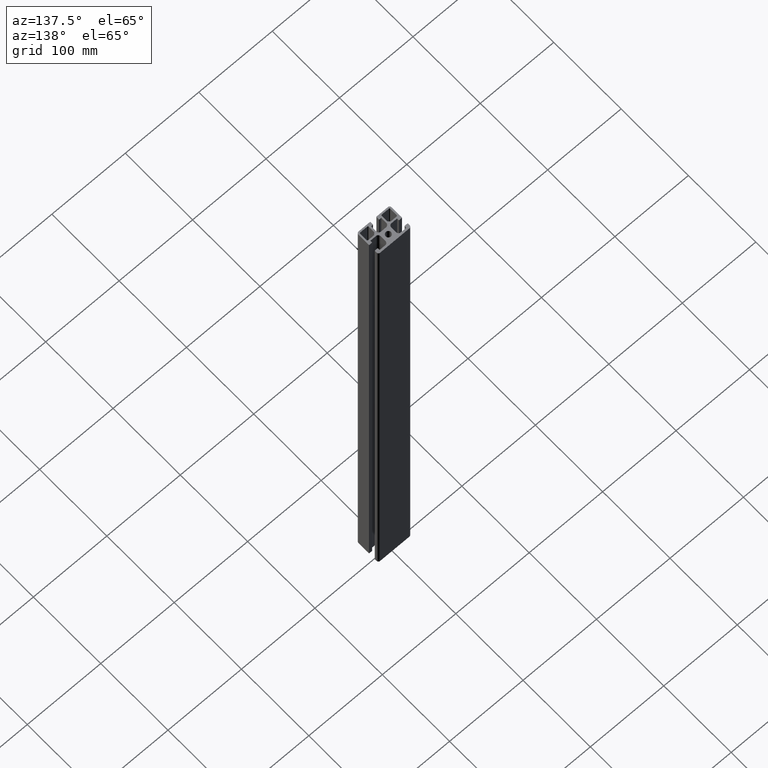
[diagram: clean part render]
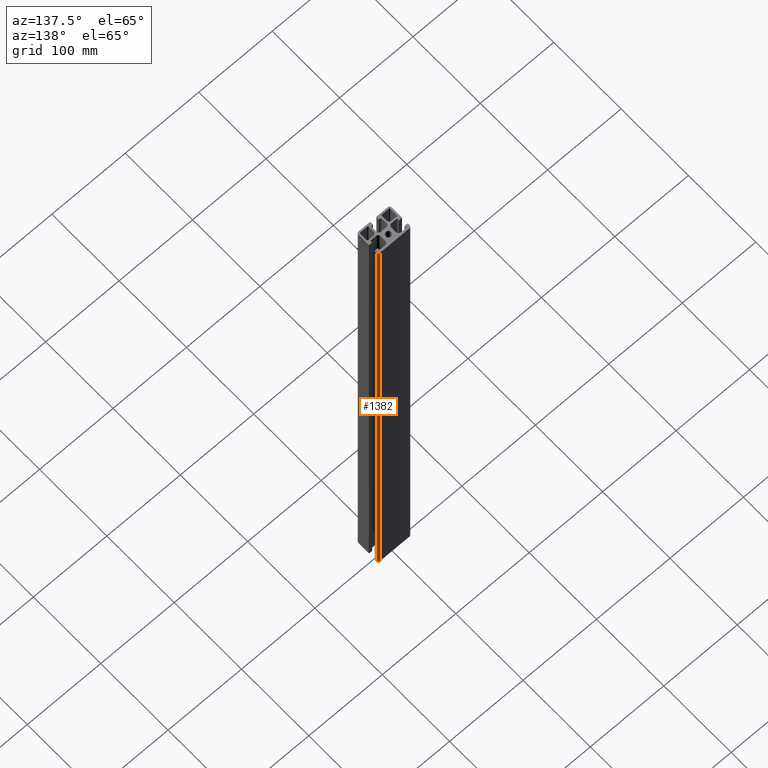
[diagram: same view with one face highlighted and labeled with its STEP entity id]
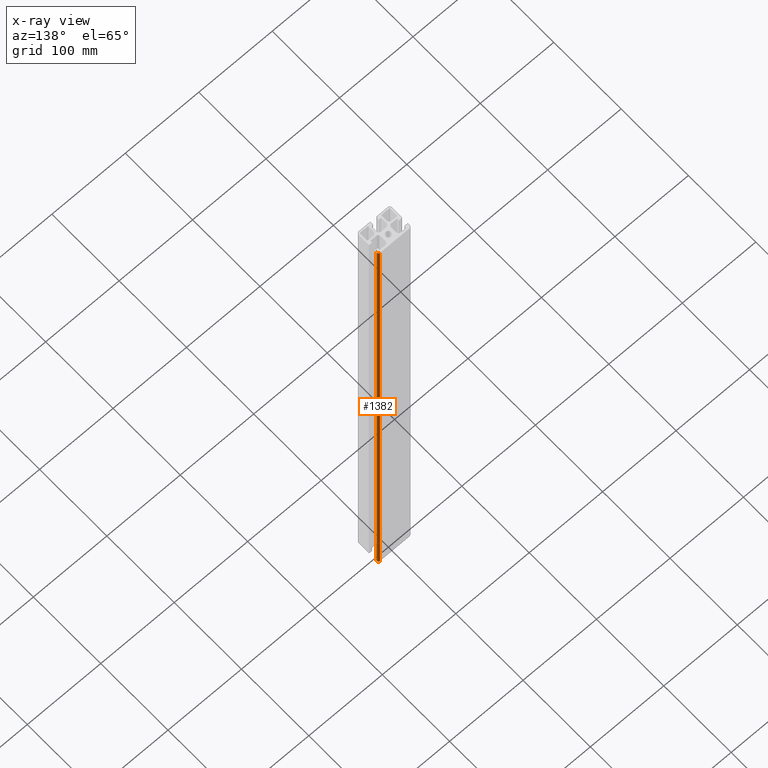
[diagram: x-ray of the same camera — body ghosted, the highlighted face saturated]
A machine part, auxiliary view. The second image highlights one B-rep face of the part: STEP entity #1382.
The next image is the same camera in x-ray: the body ghosted, the highlighted face saturated — about 0% of this face is hidden behind the body in this view.
In plain terms, the highlighted cylindrical surface (edge-blend (fillet) strip) has radius 2.5 mm, axis along (0, 0, 1).
Its self-contained STEP definition (entity closure, byte-faithful):
#71=CIRCLE('',#1518,2.5);
#78=CIRCLE('',#1532,2.5);
#107=CYLINDRICAL_SURFACE('',#1531,2.5);
#175=FACE_OUTER_BOUND('',#247,.T.);
#247=EDGE_LOOP('',(#1204,#1205,#1206,#1207));
#374=LINE('',#2283,#517);
#393=LINE('',#2333,#536);
#517=VECTOR('',#1872,10.);
#536=VECTOR('',#1925,10.);
#656=VERTEX_POINT('',#2280);
#657=VERTEX_POINT('',#2282);
#664=VERTEX_POINT('',#2304);
#671=VERTEX_POINT('',#2332);
#844=EDGE_CURVE('',#656,#657,#374,.T.);
#855=EDGE_CURVE('',#664,#657,#71,.T.);
#870=EDGE_CURVE('',#671,#664,#393,.T.);
#872=EDGE_CURVE('',#671,#656,#78,.T.);
#1204=ORIENTED_EDGE('',*,*,#855,.T.);
#1205=ORIENTED_EDGE('',*,*,#844,.F.);
#1206=ORIENTED_EDGE('',*,*,#872,.F.);
#1207=ORIENTED_EDGE('',*,*,#870,.T.);
#1382=ADVANCED_FACE('',(#175),#107,.T.);
#1518=AXIS2_PLACEMENT_3D('',#2305,#1891,#1892);
#1531=AXIS2_PLACEMENT_3D('',#2335,#1927,#1928);
#1532=AXIS2_PLACEMENT_3D('',#2336,#1929,#1930);
#1872=DIRECTION('',(0.,0.,1.));
#1891=DIRECTION('center_axis',(0.,0.,-1.));
#1892=DIRECTION('ref_axis',(1.,-4.44089209850062E-16,0.));
#1925=DIRECTION('',(0.,0.,1.));
#1927=DIRECTION('center_axis',(0.,0.,1.));
#1928=DIRECTION('ref_axis',(1.,-4.44089209850062E-16,0.));
#1929=DIRECTION('center_axis',(0.,0.,-1.));
#1930=DIRECTION('ref_axis',(1.,-4.44089209850062E-16,0.));
#2280=CARTESIAN_POINT('',(22.5,6.99999999999999,0.));
#2282=CARTESIAN_POINT('',(22.5,6.99999999999999,732.));
#2283=CARTESIAN_POINT('',(22.5,6.99999999999999,0.));
#2304=CARTESIAN_POINT('',(20.,9.5,732.));
#2305=CARTESIAN_POINT('Origin',(20.,6.99999999999999,732.));
#2332=CARTESIAN_POINT('',(20.,9.5,0.));
#2333=CARTESIAN_POINT('',(20.,9.5,0.));
#2335=CARTESIAN_POINT('Origin',(20.,6.99999999999999,0.));
#2336=CARTESIAN_POINT('Origin',(20.,6.99999999999999,0.));